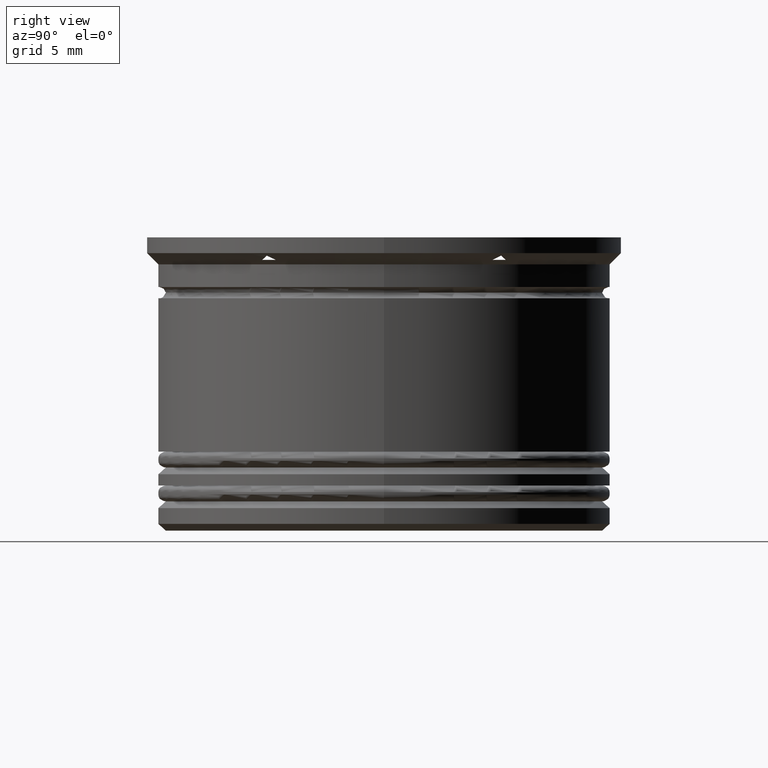
[diagram: clean part render]
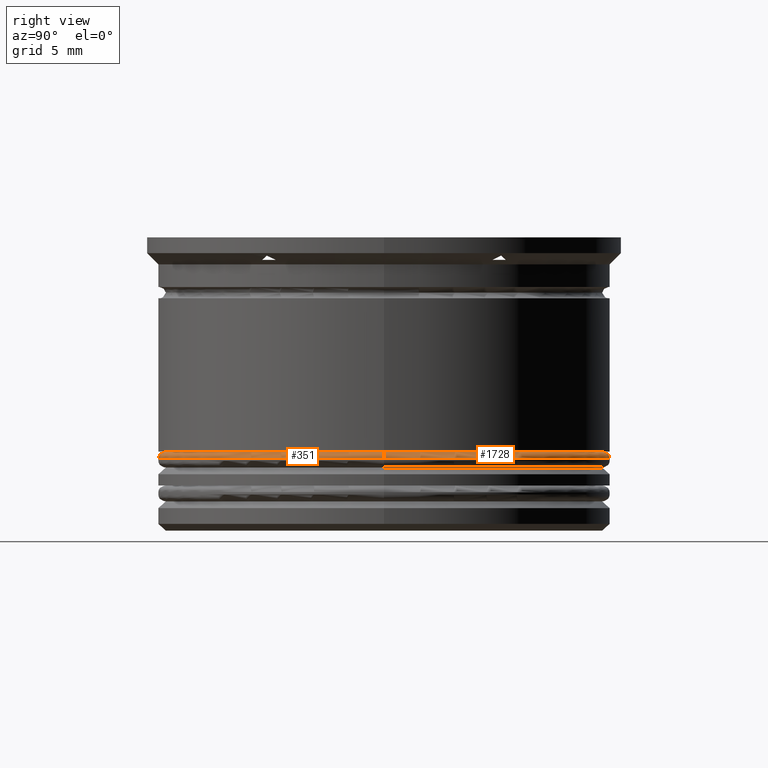
[diagram: same view with one multi-face feature highlighted, each face labeled with its STEP entity id]
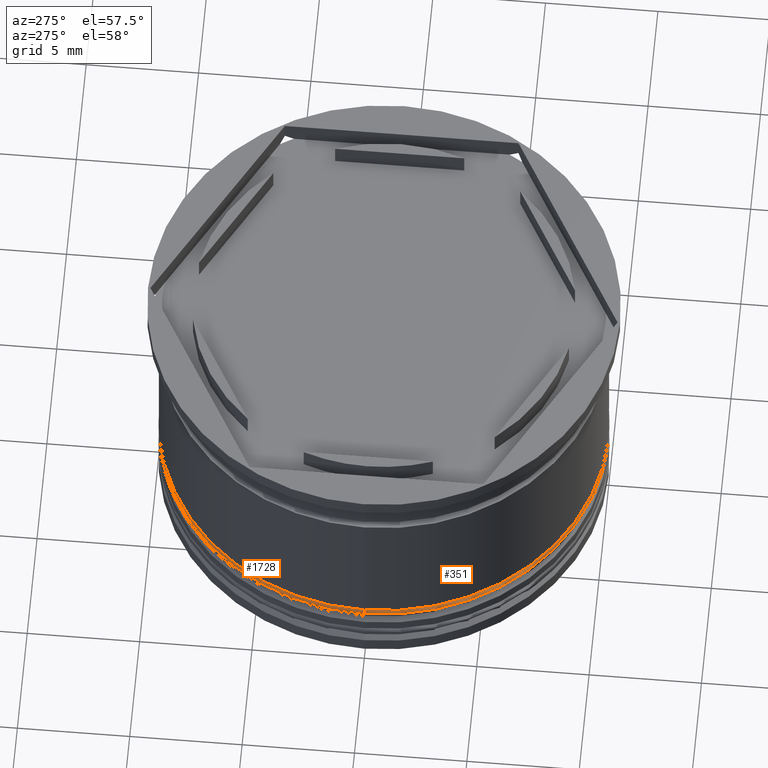
[diagram: same view with one multi-face feature highlighted, each face labeled with its STEP entity id]
A machine part, right view. The highlighted faces form ONE feature: a constant-radius fillet chain: 2 tangent blend faces with common blend radius 0.3 mm. The faces share edges in the B-rep.
A second angle (auxiliary view) of the same feature is appended — it is thin or edge-on in the first view.
Their STEP definitions:
[1] entity #351 (Torus):
#19 = AXIS2_PLACEMENT_3D ( 'NONE', #60, #1253, #1751 ) ;
#37 = EDGE_LOOP ( 'NONE', ( #1458, #1531, #1987, #1402 ) ) ;
#60 = CARTESIAN_POINT ( 'NONE',  ( -9.700000000000002842, 0.000000000000000000, -9.800000000000002487 ) ) ;
#125 = VERTEX_POINT ( 'NONE', #1118 ) ;
#137 = CARTESIAN_POINT ( 'NONE',  ( -10.00000000000000178, 1.224646799147353256E-15, -9.800000000000002487 ) ) ;
#228 = CIRCLE ( 'NONE', #859, 10.00000000000000178 ) ;
#240 = DIRECTION ( 'NONE',  ( -1.000000000000000000, 0.000000000000000000, 0.000000000000000000 ) ) ;
#273 = CARTESIAN_POINT ( 'NONE',  ( -9.700000000000002842, 0.000000000000000000, -9.500000000000001776 ) ) ;
#313 = DIRECTION ( 'NONE',  ( -0.000000000000000000, -0.000000000000000000, 1.000000000000000000 ) ) ;
#351 = ADVANCED_FACE ( 'NONE', ( #2017 ), #1973, .T. ) ;
#391 = CARTESIAN_POINT ( 'NONE',  ( 0.000000000000000000, 0.000000000000000000, -9.800000000000002487 ) ) ;
#459 = EDGE_CURVE ( 'NONE', #556, #1363, #1900, .T. ) ;
#495 = CARTESIAN_POINT ( 'NONE',  ( 0.000000000000000000, 0.000000000000000000, -9.500000000000001776 ) ) ;
#556 = VERTEX_POINT ( 'NONE', #273 ) ;
#794 = CARTESIAN_POINT ( 'NONE',  ( 9.700000000000002842, 1.187907395172932791E-15, -9.800000000000002487 ) ) ;
#812 = EDGE_CURVE ( 'NONE', #1265, #125, #953, .T. ) ;
#859 = AXIS2_PLACEMENT_3D ( 'NONE', #1581, #1715, #1404 ) ;
#862 = AXIS2_PLACEMENT_3D ( 'NONE', #495, #313, #1167 ) ;
#953 = CIRCLE ( 'NONE', #1204, 0.2999999999999999334 ) ;
#1101 = AXIS2_PLACEMENT_3D ( 'NONE', #391, #1746, #240 ) ;
#1118 = CARTESIAN_POINT ( 'NONE',  ( 10.00000000000000178, 0.000000000000000000, -9.800000000000002487 ) ) ;
#1167 = DIRECTION ( 'NONE',  ( -1.000000000000000000, 0.000000000000000000, 0.000000000000000000 ) ) ;
#1204 = AXIS2_PLACEMENT_3D ( 'NONE', #794, #1460, #1603 ) ;
#1246 = CARTESIAN_POINT ( 'NONE',  ( 9.700000000000002842, 1.206277097160143024E-15, -9.500000000000001776 ) ) ;
#1253 = DIRECTION ( 'NONE',  ( -0.000000000000000000, -1.000000000000000000, -0.000000000000000000 ) ) ;
#1265 = VERTEX_POINT ( 'NONE', #1246 ) ;
#1363 = VERTEX_POINT ( 'NONE', #137 ) ;
#1402 = ORIENTED_EDGE ( 'NONE', *, *, #1684, .F. ) ;
#1404 = DIRECTION ( 'NONE',  ( -1.000000000000000000, 0.000000000000000000, 0.000000000000000000 ) ) ;
#1458 = ORIENTED_EDGE ( 'NONE', *, *, #812, .F. ) ;
#1460 = DIRECTION ( 'NONE',  ( -1.224646799147353207E-16, 1.000000000000000000, 0.000000000000000000 ) ) ;
#1531 = ORIENTED_EDGE ( 'NONE', *, *, #1859, .F. ) ;
#1560 = CIRCLE ( 'NONE', #862, 9.700000000000002842 ) ;
#1581 = CARTESIAN_POINT ( 'NONE',  ( 0.000000000000000000, 0.000000000000000000, -9.800000000000002487 ) ) ;
#1603 = DIRECTION ( 'NONE',  ( -1.000000000000000000, -1.224646799147353207E-16, 0.000000000000000000 ) ) ;
#1684 = EDGE_CURVE ( 'NONE', #125, #1363, #228, .T. ) ;
#1715 = DIRECTION ( 'NONE',  ( 0.000000000000000000, 0.000000000000000000, -1.000000000000000000 ) ) ;
#1746 = DIRECTION ( 'NONE',  ( 0.000000000000000000, 0.000000000000000000, -1.000000000000000000 ) ) ;
#1751 = DIRECTION ( 'NONE',  ( 0.000000000000000000, 0.000000000000000000, -1.000000000000000000 ) ) ;
#1859 = EDGE_CURVE ( 'NONE', #556, #1265, #1560, .T. ) ;
#1900 = CIRCLE ( 'NONE', #19, 0.2999999999999999334 ) ;
#1973 = TOROIDAL_SURFACE ( 'NONE', #1101, 9.700000000000002842, 0.2999999999999999889 ) ;
#1987 = ORIENTED_EDGE ( 'NONE', *, *, #459, .T. ) ;
#2017 = FACE_OUTER_BOUND ( 'NONE', #37, .T. ) ;
[2] entity #1728 (Torus):
#19 = AXIS2_PLACEMENT_3D ( 'NONE', #60, #1253, #1751 ) ;
#60 = CARTESIAN_POINT ( 'NONE',  ( -9.700000000000002842, 0.000000000000000000, -9.800000000000002487 ) ) ;
#102 = DIRECTION ( 'NONE',  ( 0.000000000000000000, 0.000000000000000000, -1.000000000000000000 ) ) ;
#112 = DIRECTION ( 'NONE',  ( -1.000000000000000000, 0.000000000000000000, 0.000000000000000000 ) ) ;
#125 = VERTEX_POINT ( 'NONE', #1118 ) ;
#137 = CARTESIAN_POINT ( 'NONE',  ( -10.00000000000000178, 1.224646799147353256E-15, -9.800000000000002487 ) ) ;
#246 = ORIENTED_EDGE ( 'NONE', *, *, #563, .F. ) ;
#258 = FACE_OUTER_BOUND ( 'NONE', #619, .T. ) ;
#273 = CARTESIAN_POINT ( 'NONE',  ( -9.700000000000002842, 0.000000000000000000, -9.500000000000001776 ) ) ;
#281 = DIRECTION ( 'NONE',  ( -1.000000000000000000, 0.000000000000000000, 0.000000000000000000 ) ) ;
#334 = AXIS2_PLACEMENT_3D ( 'NONE', #1605, #102, #112 ) ;
#459 = EDGE_CURVE ( 'NONE', #556, #1363, #1900, .T. ) ;
#468 = CIRCLE ( 'NONE', #2075, 9.700000000000002842 ) ;
#556 = VERTEX_POINT ( 'NONE', #273 ) ;
#563 = EDGE_CURVE ( 'NONE', #1265, #556, #468, .T. ) ;
#619 = EDGE_LOOP ( 'NONE', ( #246, #1631, #1852, #1219 ) ) ;
#652 = DIRECTION ( 'NONE',  ( 0.000000000000000000, 0.000000000000000000, -1.000000000000000000 ) ) ;
#655 = CARTESIAN_POINT ( 'NONE',  ( 0.000000000000000000, 0.000000000000000000, -9.500000000000001776 ) ) ;
#683 = TOROIDAL_SURFACE ( 'NONE', #334, 9.700000000000002842, 0.2999999999999999889 ) ;
#794 = CARTESIAN_POINT ( 'NONE',  ( 9.700000000000002842, 1.187907395172932791E-15, -9.800000000000002487 ) ) ;
#812 = EDGE_CURVE ( 'NONE', #1265, #125, #953, .T. ) ;
#868 = EDGE_CURVE ( 'NONE', #1363, #125, #1236, .T. ) ;
#953 = CIRCLE ( 'NONE', #1204, 0.2999999999999999334 ) ;
#1118 = CARTESIAN_POINT ( 'NONE',  ( 10.00000000000000178, 0.000000000000000000, -9.800000000000002487 ) ) ;
#1134 = DIRECTION ( 'NONE',  ( -0.000000000000000000, -0.000000000000000000, 1.000000000000000000 ) ) ;
#1204 = AXIS2_PLACEMENT_3D ( 'NONE', #794, #1460, #1603 ) ;
#1219 = ORIENTED_EDGE ( 'NONE', *, *, #459, .F. ) ;
#1236 = CIRCLE ( 'NONE', #1522, 10.00000000000000178 ) ;
#1246 = CARTESIAN_POINT ( 'NONE',  ( 9.700000000000002842, 1.206277097160143024E-15, -9.500000000000001776 ) ) ;
#1253 = DIRECTION ( 'NONE',  ( -0.000000000000000000, -1.000000000000000000, -0.000000000000000000 ) ) ;
#1265 = VERTEX_POINT ( 'NONE', #1246 ) ;
#1337 = DIRECTION ( 'NONE',  ( -1.000000000000000000, 0.000000000000000000, 0.000000000000000000 ) ) ;
#1356 = CARTESIAN_POINT ( 'NONE',  ( 0.000000000000000000, 0.000000000000000000, -9.800000000000002487 ) ) ;
#1363 = VERTEX_POINT ( 'NONE', #137 ) ;
#1460 = DIRECTION ( 'NONE',  ( -1.224646799147353207E-16, 1.000000000000000000, 0.000000000000000000 ) ) ;
#1522 = AXIS2_PLACEMENT_3D ( 'NONE', #1356, #652, #1337 ) ;
#1603 = DIRECTION ( 'NONE',  ( -1.000000000000000000, -1.224646799147353207E-16, 0.000000000000000000 ) ) ;
#1605 = CARTESIAN_POINT ( 'NONE',  ( 0.000000000000000000, 0.000000000000000000, -9.800000000000002487 ) ) ;
#1631 = ORIENTED_EDGE ( 'NONE', *, *, #812, .T. ) ;
#1728 = ADVANCED_FACE ( 'NONE', ( #258 ), #683, .T. ) ;
#1751 = DIRECTION ( 'NONE',  ( 0.000000000000000000, 0.000000000000000000, -1.000000000000000000 ) ) ;
#1852 = ORIENTED_EDGE ( 'NONE', *, *, #868, .F. ) ;
#1900 = CIRCLE ( 'NONE', #19, 0.2999999999999999334 ) ;
#2075 = AXIS2_PLACEMENT_3D ( 'NONE', #655, #1134, #281 ) ;